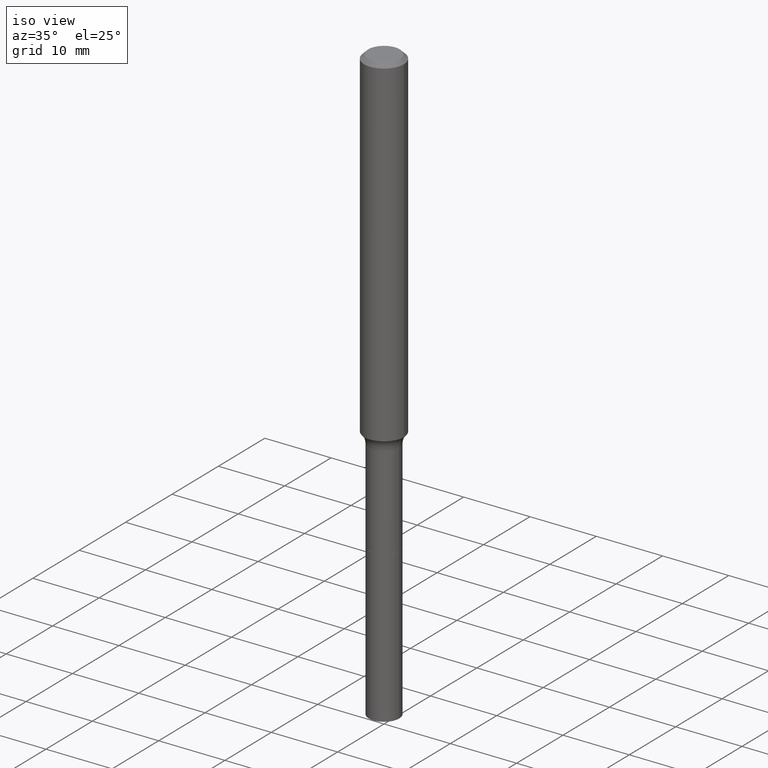
[diagram: clean part render]
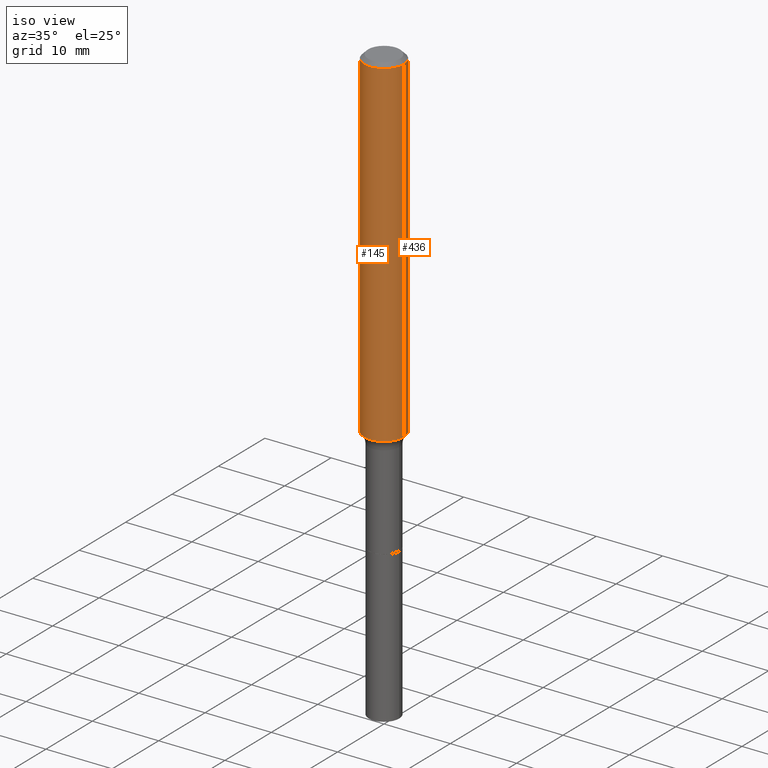
[diagram: same view with one multi-face feature highlighted, each face labeled with its STEP entity id]
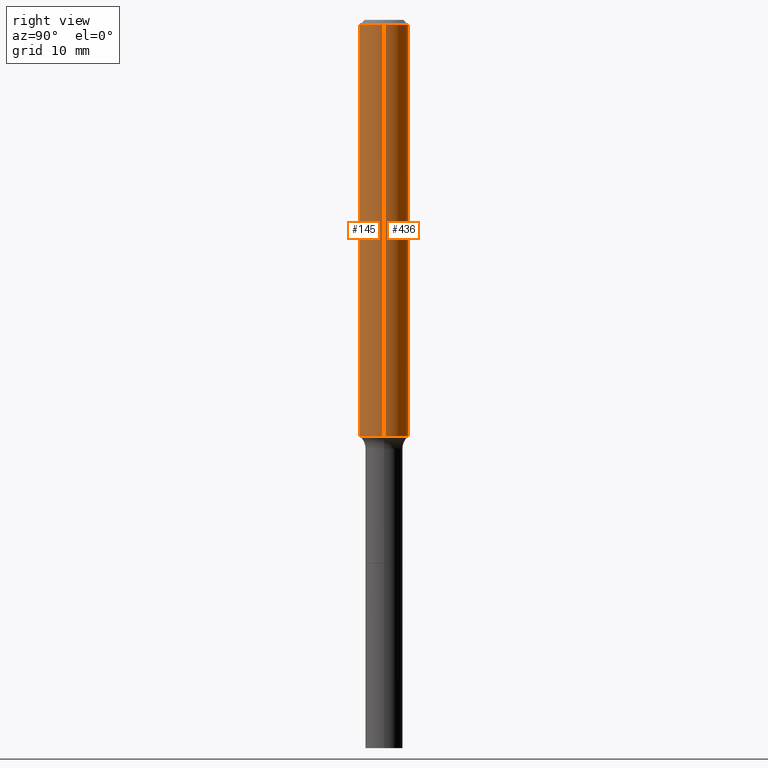
[diagram: same view with one multi-face feature highlighted, each face labeled with its STEP entity id]
A machine part, iso view. The highlighted faces form ONE feature: a constant-radius fillet chain: 2 tangent blend faces with common blend radius 2.9997 mm. The faces share edges in the B-rep.
A second angle (right view) of the same feature is appended — it is thin or edge-on in the first view.
Their STEP definitions:
[1] entity #436 (Cylinder):
#4 = CARTESIAN_POINT ( 'NONE',  ( -0.1181000000000001354, 8.391509709326792818E-16, -5.809262341591050090E-30 ) ) ;
#24 = EDGE_CURVE ( 'NONE', #239, #433, #440, .T. ) ;
#51 = EDGE_LOOP ( 'NONE', ( #515, #408, #401, #472 ) ) ;
#92 = VECTOR ( 'NONE', #509, 39.37007874015748143 ) ;
#101 = DIRECTION ( 'NONE',  ( 1.000000000000000000, -6.982962677686266711E-15, 4.876176775795936353E-29 ) ) ;
#125 = DIRECTION ( 'NONE',  ( -2.445468806185136877E-29, 3.491481338843145188E-15, 1.000000000000000000 ) ) ;
#139 = AXIS2_PLACEMENT_3D ( 'NONE', #259, #295, #447 ) ;
#178 = EDGE_CURVE ( 'NONE', #473, #433, #480, .T. ) ;
#183 = CARTESIAN_POINT ( 'NONE',  ( 0.000000000000000000, 0.000000000000000000, 0.000000000000000000 ) ) ;
#209 = CARTESIAN_POINT ( 'NONE',  ( 0.1181000000000000105, -9.071566814582239172E-16, -0.02362000000000015823 ) ) ;
#221 = CARTESIAN_POINT ( 'NONE',  ( -0.1181000000000002603, -6.231948580712261806E-15, -2.025243403989624102 ) ) ;
#230 = VECTOR ( 'NONE', #125, 39.37007874015748143 ) ;
#239 = VERTEX_POINT ( 'NONE', #209 ) ;
#240 = FACE_OUTER_BOUND ( 'NONE', #51, .T. ) ;
#259 = CARTESIAN_POINT ( 'NONE',  ( 4.952669569388828117E-29, -7.071099551644942369E-15, -2.025243403989624102 ) ) ;
#295 = DIRECTION ( 'NONE',  ( -2.445468806185136597E-29, 3.491481338843145583E-15, 1.000000000000000000 ) ) ;
#310 = EDGE_CURVE ( 'NONE', #469, #239, #352, .T. ) ;
#335 = DIRECTION ( 'NONE',  ( 1.000000000000000000, -6.982962677686267499E-15, 0.000000000000000000 ) ) ;
#338 = CIRCLE ( 'NONE', #139, 0.1181000000000002603 ) ;
#347 = DIRECTION ( 'NONE',  ( -2.445468806185136597E-29, 3.491481338843145583E-15, 1.000000000000000000 ) ) ;
#352 = LINE ( 'NONE', #357, #92 ) ;
#357 = CARTESIAN_POINT ( 'NONE',  ( 0.1181000000000001354, -8.246878922347490515E-16, 5.758764772215007447E-30 ) ) ;
#369 = EDGE_CURVE ( 'NONE', #469, #473, #338, .T. ) ;
#376 = DIRECTION ( 'NONE',  ( -2.445468806185136597E-29, 3.491481338843145583E-15, 1.000000000000000000 ) ) ;
#397 = CARTESIAN_POINT ( 'NONE',  ( -0.1181000000000000105, -2.737633199501528744E-15, -0.02362000000000015823 ) ) ;
#401 = ORIENTED_EDGE ( 'NONE', *, *, #24, .F. ) ;
#408 = ORIENTED_EDGE ( 'NONE', *, *, #178, .T. ) ;
#425 = AXIS2_PLACEMENT_3D ( 'NONE', #183, #347, #101 ) ;
#433 = VERTEX_POINT ( 'NONE', #397 ) ;
#434 = CYLINDRICAL_SURFACE ( 'NONE', #425, 0.1181000000000001354 ) ;
#436 = ADVANCED_FACE ( 'NONE', ( #240 ), #434, .T. ) ;
#440 = CIRCLE ( 'NONE', #454, 0.1181000000000000105 ) ;
#447 = DIRECTION ( 'NONE',  ( 1.000000000000000000, -6.982962677686265133E-15, 0.000000000000000000 ) ) ;
#454 = AXIS2_PLACEMENT_3D ( 'NONE', #456, #376, #335 ) ;
#456 = CARTESIAN_POINT ( 'NONE',  ( 5.776197320209331911E-31, -8.246878922347565456E-17, -0.02362000000000015823 ) ) ;
#463 = CARTESIAN_POINT ( 'NONE',  ( 0.1181000000000002603, -7.895787443879692998E-15, -2.025243403989624102 ) ) ;
#469 = VERTEX_POINT ( 'NONE', #463 ) ;
#472 = ORIENTED_EDGE ( 'NONE', *, *, #310, .F. ) ;
#473 = VERTEX_POINT ( 'NONE', #221 ) ;
#480 = LINE ( 'NONE', #4, #230 ) ;
#509 = DIRECTION ( 'NONE',  ( -2.445468806185136877E-29, 3.491481338843145188E-15, 1.000000000000000000 ) ) ;
#515 = ORIENTED_EDGE ( 'NONE', *, *, #369, .T. ) ;
[2] entity #145 (Cylinder):
#4 = CARTESIAN_POINT ( 'NONE',  ( -0.1181000000000001354, 8.391509709326792818E-16, -5.809262341591050090E-30 ) ) ;
#5 = CIRCLE ( 'NONE', #248, 0.1181000000000002603 ) ;
#21 = DIRECTION ( 'NONE',  ( 1.000000000000000000, -6.982962677686267499E-15, 0.000000000000000000 ) ) ;
#37 = FACE_OUTER_BOUND ( 'NONE', #74, .T. ) ;
#39 = ORIENTED_EDGE ( 'NONE', *, *, #186, .T. ) ;
#74 = EDGE_LOOP ( 'NONE', ( #245, #39, #171, #437 ) ) ;
#89 = EDGE_CURVE ( 'NONE', #433, #239, #137, .T. ) ;
#92 = VECTOR ( 'NONE', #509, 39.37007874015748143 ) ;
#125 = DIRECTION ( 'NONE',  ( -2.445468806185136877E-29, 3.491481338843145188E-15, 1.000000000000000000 ) ) ;
#137 = CIRCLE ( 'NONE', #475, 0.1181000000000000105 ) ;
#145 = ADVANCED_FACE ( 'NONE', ( #37 ), #249, .T. ) ;
#153 = CARTESIAN_POINT ( 'NONE',  ( 4.952669569388828117E-29, -7.071099551644942369E-15, -2.025243403989624102 ) ) ;
#171 = ORIENTED_EDGE ( 'NONE', *, *, #310, .T. ) ;
#174 = DIRECTION ( 'NONE',  ( -2.445468806185136597E-29, 3.491481338843145583E-15, 1.000000000000000000 ) ) ;
#178 = EDGE_CURVE ( 'NONE', #473, #433, #480, .T. ) ;
#186 = EDGE_CURVE ( 'NONE', #473, #469, #5, .T. ) ;
#209 = CARTESIAN_POINT ( 'NONE',  ( 0.1181000000000000105, -9.071566814582239172E-16, -0.02362000000000015823 ) ) ;
#221 = CARTESIAN_POINT ( 'NONE',  ( -0.1181000000000002603, -6.231948580712261806E-15, -2.025243403989624102 ) ) ;
#230 = VECTOR ( 'NONE', #125, 39.37007874015748143 ) ;
#239 = VERTEX_POINT ( 'NONE', #209 ) ;
#244 = CARTESIAN_POINT ( 'NONE',  ( 0.000000000000000000, 0.000000000000000000, 0.000000000000000000 ) ) ;
#245 = ORIENTED_EDGE ( 'NONE', *, *, #178, .F. ) ;
#248 = AXIS2_PLACEMENT_3D ( 'NONE', #153, #275, #427 ) ;
#249 = CYLINDRICAL_SURFACE ( 'NONE', #344, 0.1181000000000001354 ) ;
#275 = DIRECTION ( 'NONE',  ( -2.445468806185136597E-29, 3.491481338843145583E-15, 1.000000000000000000 ) ) ;
#310 = EDGE_CURVE ( 'NONE', #469, #239, #352, .T. ) ;
#328 = DIRECTION ( 'NONE',  ( 1.000000000000000000, -6.982962677686266711E-15, 4.876176775795936353E-29 ) ) ;
#344 = AXIS2_PLACEMENT_3D ( 'NONE', #244, #395, #328 ) ;
#352 = LINE ( 'NONE', #357, #92 ) ;
#357 = CARTESIAN_POINT ( 'NONE',  ( 0.1181000000000001354, -8.246878922347490515E-16, 5.758764772215007447E-30 ) ) ;
#395 = DIRECTION ( 'NONE',  ( -2.445468806185136597E-29, 3.491481338843145583E-15, 1.000000000000000000 ) ) ;
#397 = CARTESIAN_POINT ( 'NONE',  ( -0.1181000000000000105, -2.737633199501528744E-15, -0.02362000000000015823 ) ) ;
#406 = CARTESIAN_POINT ( 'NONE',  ( 5.776197320209331911E-31, -8.246878922347565456E-17, -0.02362000000000015823 ) ) ;
#427 = DIRECTION ( 'NONE',  ( 1.000000000000000000, -6.982962677686265133E-15, 0.000000000000000000 ) ) ;
#433 = VERTEX_POINT ( 'NONE', #397 ) ;
#437 = ORIENTED_EDGE ( 'NONE', *, *, #89, .F. ) ;
#463 = CARTESIAN_POINT ( 'NONE',  ( 0.1181000000000002603, -7.895787443879692998E-15, -2.025243403989624102 ) ) ;
#469 = VERTEX_POINT ( 'NONE', #463 ) ;
#473 = VERTEX_POINT ( 'NONE', #221 ) ;
#475 = AXIS2_PLACEMENT_3D ( 'NONE', #406, #174, #21 ) ;
#480 = LINE ( 'NONE', #4, #230 ) ;
#509 = DIRECTION ( 'NONE',  ( -2.445468806185136877E-29, 3.491481338843145188E-15, 1.000000000000000000 ) ) ;